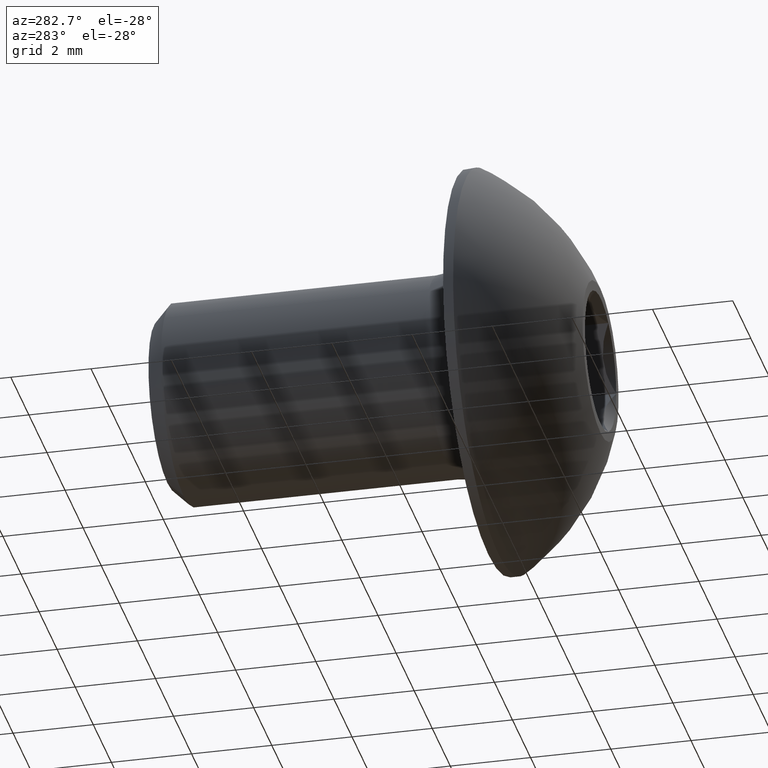
[diagram: clean part render]
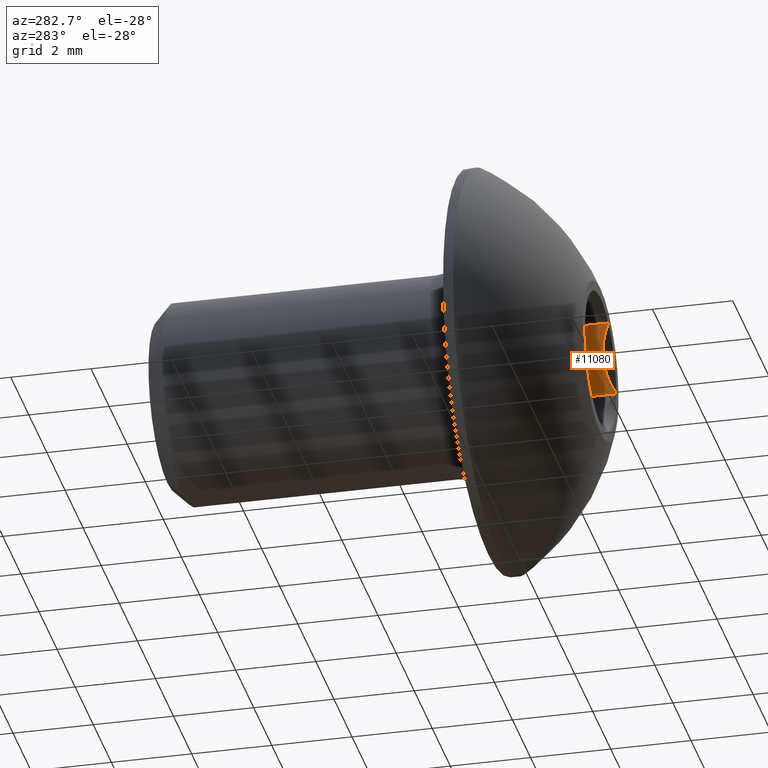
[diagram: same view with one face highlighted and labeled with its STEP entity id]
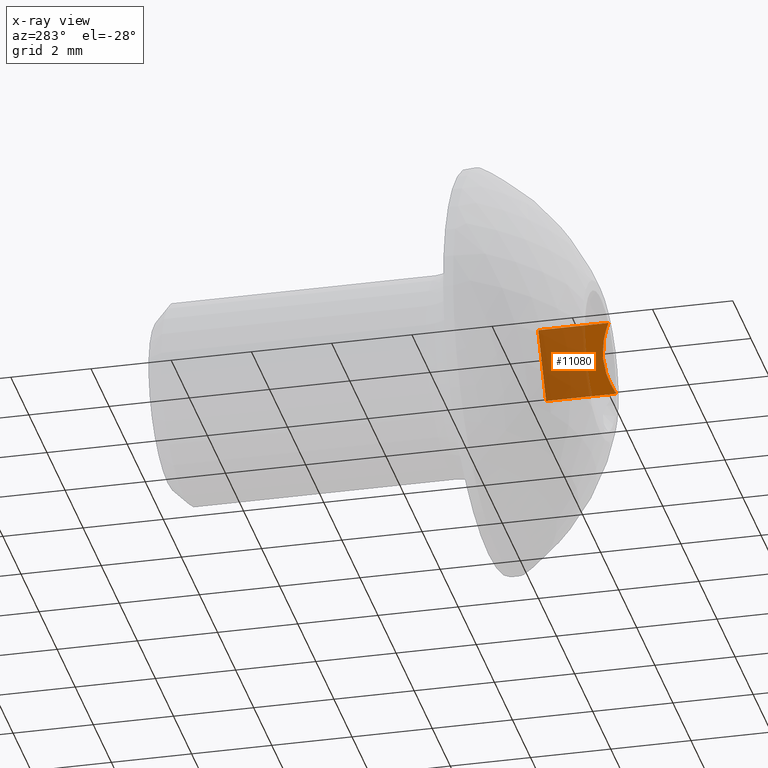
[diagram: x-ray of the same camera — body ghosted, the highlighted face saturated]
A machine part, auxiliary view. The second image highlights one B-rep face of the part: STEP entity #11080.
The next image is the same camera in x-ray: the body ghosted, the highlighted face saturated — about 70% of this face is hidden behind the body in this view.
In plain terms, the highlighted planar face has unit normal (-0.866, 0, -0.5).
Its self-contained STEP definition (entity closure, byte-faithful):
#97 = EDGE_CURVE ( 'NONE', #10025, #2205, #12328, .T. ) ;
#327 = CARTESIAN_POINT ( 'NONE',  ( 1.451865029342856106, 0.2073968633204851808, 0.4852960034456609284 ) ) ;
#371 = CARTESIAN_POINT ( 'NONE',  ( 1.732050807568856099, 0.000000000000000000, -1.077119364755166471E-16 ) ) ;
#1956 = CARTESIAN_POINT ( 'NONE',  ( 0.8660254037844224984, 1.749999999999999778, 1.500000000000000000 ) ) ;
#2205 = VERTEX_POINT ( 'NONE', #12471 ) ;
#2684 = CARTESIAN_POINT ( 'NONE',  ( 1.376235154422027707, 0.2317258303996959645, 0.6162907893786155888 ) ) ;
#2828 = LINE ( 'NONE', #4922, #9015 ) ;
#2884 = VERTEX_POINT ( 'NONE', #7613 ) ;
#3077 = DIRECTION ( 'NONE',  ( -0.4999999999999977796, 0.000000000000000000, 0.8660254037844399289 ) ) ;
#4193 = LINE ( 'NONE', #5114, #7574 ) ;
#4922 = CARTESIAN_POINT ( 'NONE',  ( 0.8660254037844224984, 1.749999999999999778, 1.500000000000000000 ) ) ;
#5114 = CARTESIAN_POINT ( 'NONE',  ( 1.732050807568856099, 1.749999999999999778, -1.077119364755166471E-16 ) ) ;
#5161 = CARTESIAN_POINT ( 'NONE',  ( 1.002151428125722887, 0.1361260243419106231, 1.264222809608507969 ) ) ;
#5786 = ORIENTED_EDGE ( 'NONE', *, *, #12158, .F. ) ;
#5893 = B_SPLINE_CURVE_WITH_KNOTS ( 'NONE', 3,
 ( #371, #14762, #9871, #327, #2684, #8766, #5161, #13507 ),
 .UNSPECIFIED., .F., .F.,
 ( 4, 2, 2, 4 ),
 ( 2.544365555359368480E-07, 0.0004475380576734537237, 0.0008948216787913714897, 0.001789388921027207455 ),
 .UNSPECIFIED. ) ;
#6763 = DIRECTION ( 'NONE',  ( 0.000000000000000000, -1.000000000000000000, 0.000000000000000000 ) ) ;
#7574 = VECTOR ( 'NONE', #6763, 1000.000000000000000 ) ;
#7613 = CARTESIAN_POINT ( 'NONE',  ( 0.8660254037844224984, 0.000000000000000000, 1.500000000000000000 ) ) ;
#7826 = ORIENTED_EDGE ( 'NONE', *, *, #10193, .T. ) ;
#8359 = DIRECTION ( 'NONE',  ( 0.4999999999999977796, 0.000000000000000000, -0.8660254037844398178 ) ) ;
#8456 = EDGE_CURVE ( 'NONE', #2205, #8466, #4193, .T. ) ;
#8466 = VERTEX_POINT ( 'NONE', #11079 ) ;
#8766 = CARTESIAN_POINT ( 'NONE',  ( 1.149429382477810568, 0.2326905842268814917, 1.009129909835881911 ) ) ;
#9006 = AXIS2_PLACEMENT_3D ( 'NONE', #1956, #9209, #3077 ) ;
#9015 = VECTOR ( 'NONE', #13259, 1000.000000000000000 ) ;
#9209 = DIRECTION ( 'NONE',  ( -0.8660254037844399289, 0.000000000000000000, -0.4999999999999977796 ) ) ;
#9518 = CARTESIAN_POINT ( 'NONE',  ( 0.8660254037844224984, 1.749999999999999778, 1.500000000000000000 ) ) ;
#9871 = CARTESIAN_POINT ( 'NONE',  ( 1.595196451512776559, 0.1251953571450855340, 0.2370386979262527616 ) ) ;
#10025 = VERTEX_POINT ( 'NONE', #14345 ) ;
#10193 = EDGE_CURVE ( 'NONE', #8466, #2884, #5893, .T. ) ;
#10259 = PLANE ( 'NONE',  #9006 ) ;
#11079 = CARTESIAN_POINT ( 'NONE',  ( 1.732050807568856099, 0.000000000000000000, -1.077119364755166471E-16 ) ) ;
#11080 = ADVANCED_FACE ( 'NONE', ( #13697 ), #10259, .T. ) ;
#12158 = EDGE_CURVE ( 'NONE', #10025, #2884, #2828, .T. ) ;
#12328 = LINE ( 'NONE', #9518, #13461 ) ;
#12471 = CARTESIAN_POINT ( 'NONE',  ( 1.732050807568856099, 1.749999999999999778, -1.077119364755166471E-16 ) ) ;
#13259 = DIRECTION ( 'NONE',  ( 0.000000000000000000, -1.000000000000000000, 0.000000000000000000 ) ) ;
#13461 = VECTOR ( 'NONE', #8359, 1000.000000000000114 ) ;
#13507 = CARTESIAN_POINT ( 'NONE',  ( 0.8660254037844224984, 0.000000000000000000, 1.500000000000000000 ) ) ;
#13554 = EDGE_LOOP ( 'NONE', ( #7826, #5786, #14135, #14807 ) ) ;
#13697 = FACE_OUTER_BOUND ( 'NONE', #13554, .T. ) ;
#14135 = ORIENTED_EDGE ( 'NONE', *, *, #97, .T. ) ;
#14345 = CARTESIAN_POINT ( 'NONE',  ( 0.8660254037844224984, 1.749999999999999778, 1.500000000000000000 ) ) ;
#14762 = CARTESIAN_POINT ( 'NONE',  ( 1.664386866925728015, 0.06766394064315063572, 0.1171973830342237927 ) ) ;
#14807 = ORIENTED_EDGE ( 'NONE', *, *, #8456, .T. ) ;